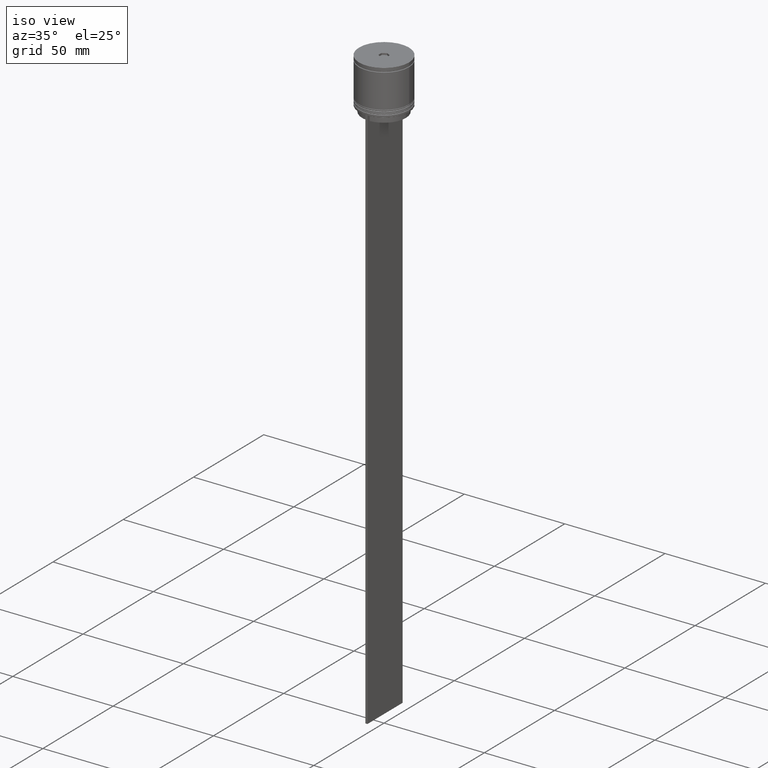
[diagram: clean part render]
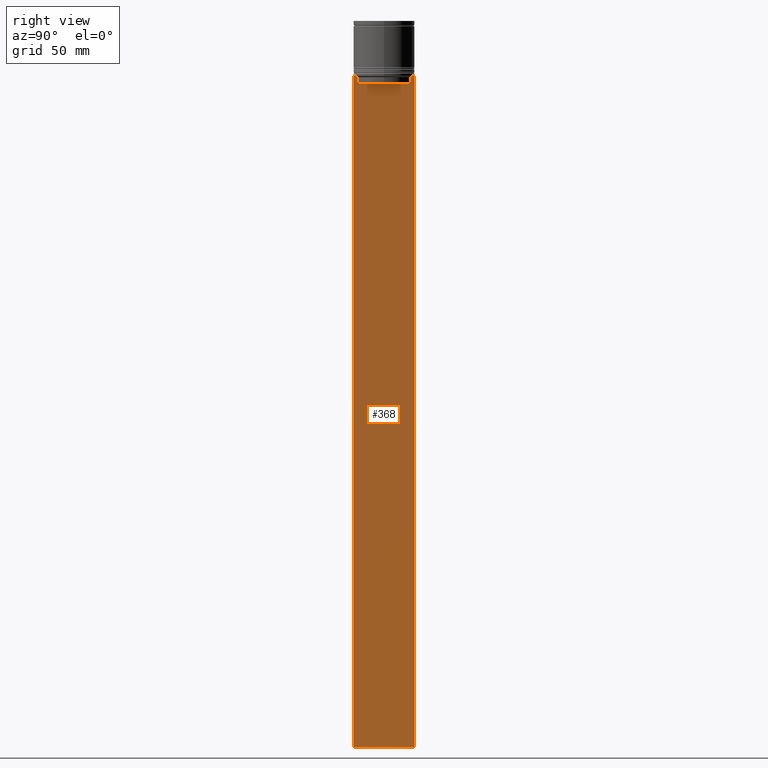
[diagram: tour spotlight — one face highlighted and labeled with its STEP entity id]
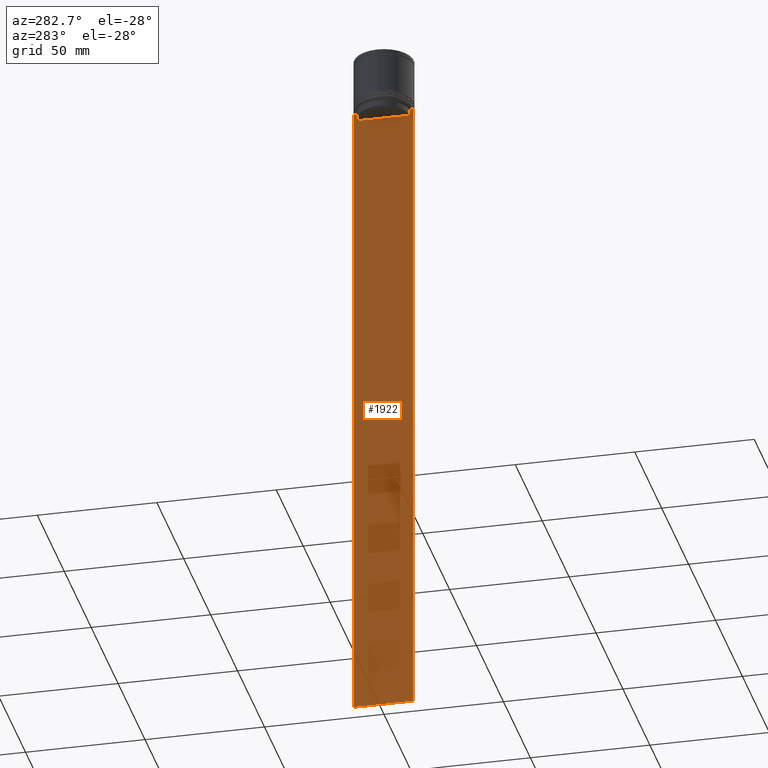
[diagram: tour spotlight — one face highlighted and labeled with its STEP entity id]
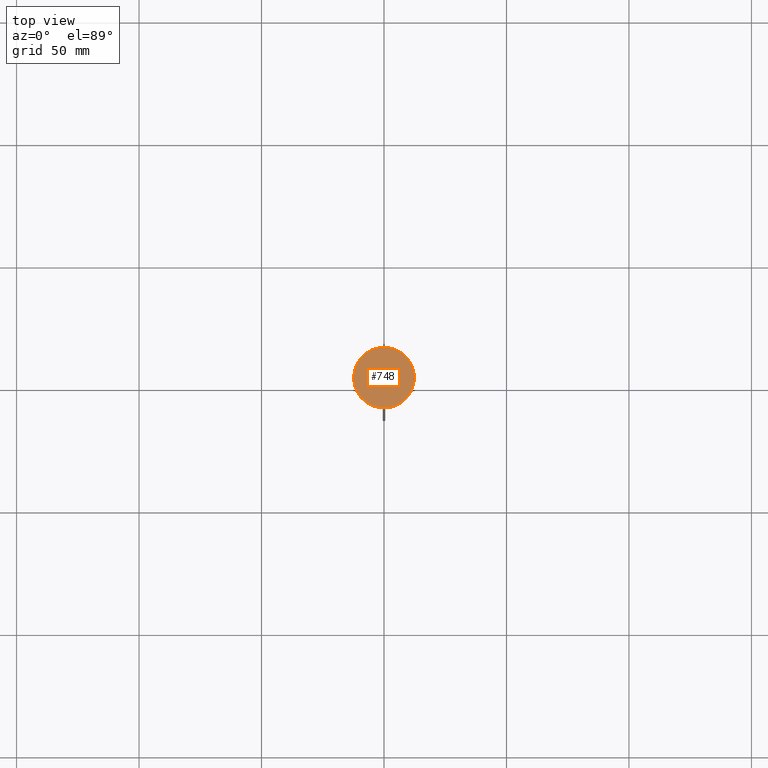
[diagram: tour spotlight — one face highlighted and labeled with its STEP entity id]
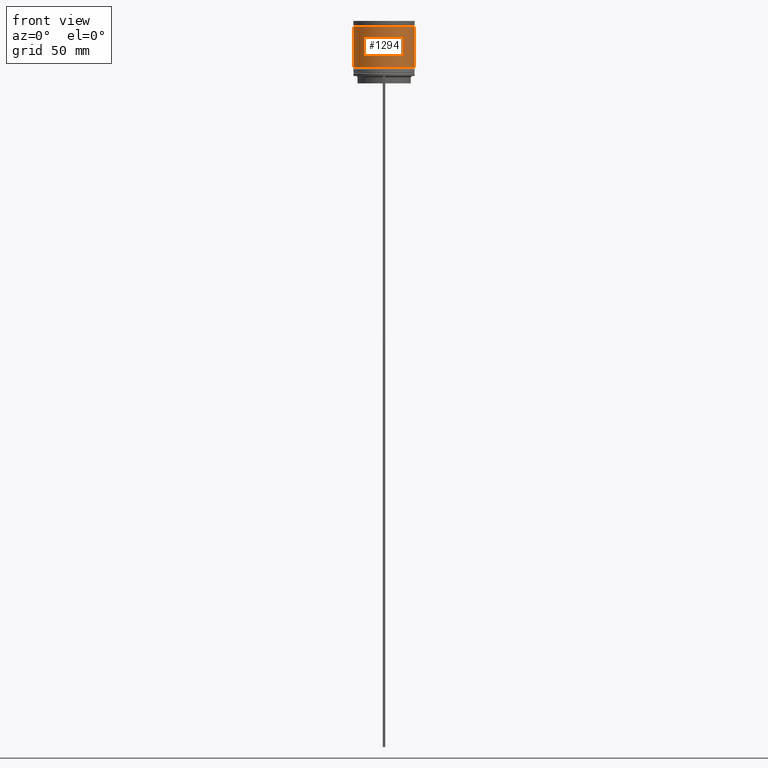
[diagram: tour spotlight — one face highlighted and labeled with its STEP entity id]
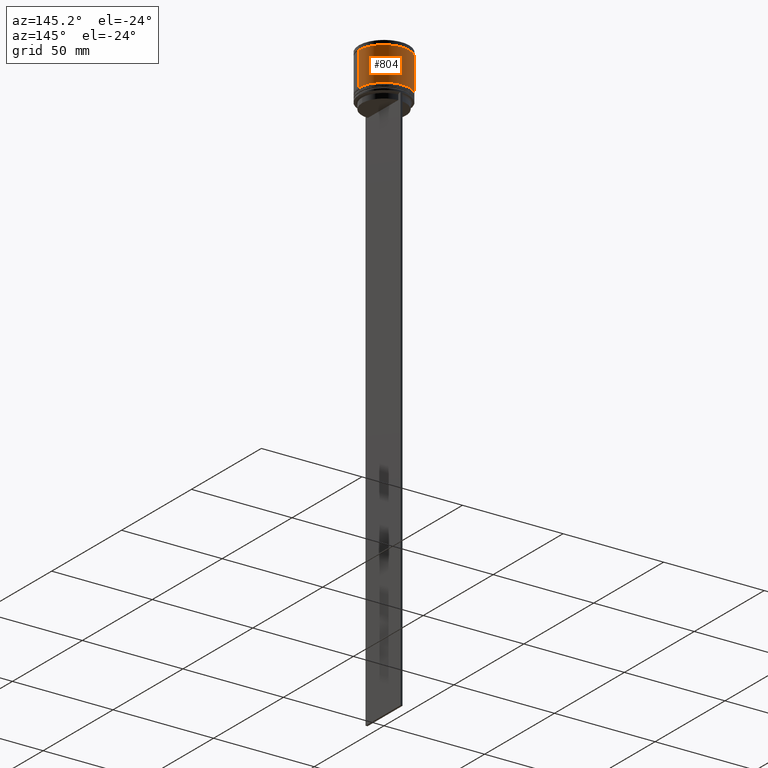
[diagram: tour spotlight — one face highlighted and labeled with its STEP entity id]
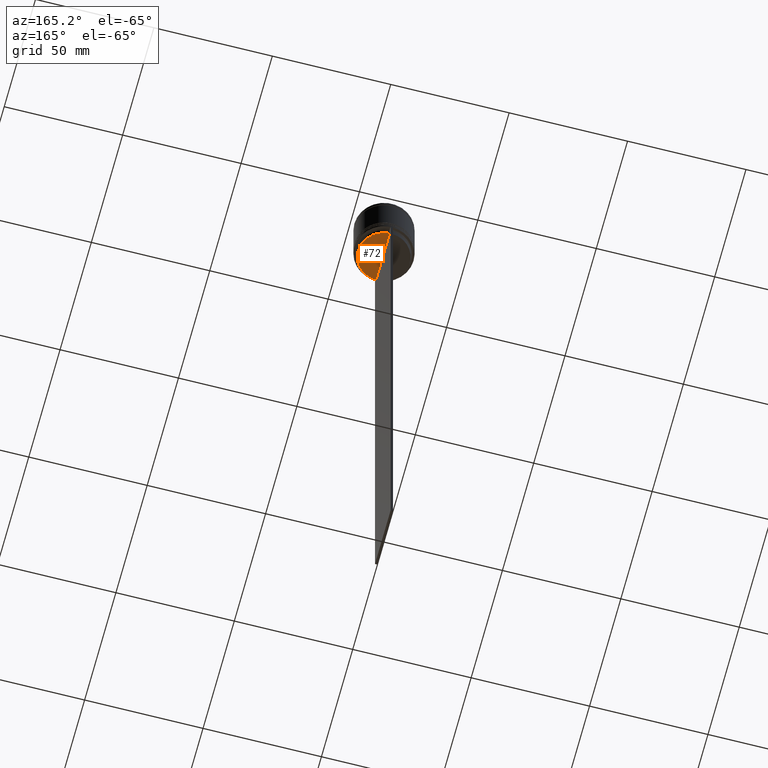
[diagram: tour spotlight — one face highlighted and labeled with its STEP entity id]
A machine part: a face-by-face anatomy tour. The part has 75 B-rep faces; the first image is the clean iso view, then the 6 largest visible faces are spotlighted one at a time (largest first), each with its STEP entity span.

Face 1 — right view, entity #368. In plain terms, the highlighted planar face has unit normal (-1, 0, 0).
Definition (entity closure, byte-faithful):
#27 = CARTESIAN_POINT ( 'NONE',  ( 0.5000000000000000000, 10.88852607105297032, -22.99999999999999645 ) ) ;
#47 = PLANE ( 'NONE',  #1369 ) ;
#53 = CARTESIAN_POINT ( 'NONE',  ( 0.5000000000000000000, 10.90000000000000924, -25.50000000000000000 ) ) ;
#93 = VECTOR ( 'NONE', #1723, 1000.000000000000000 ) ;
#98 = CARTESIAN_POINT ( 'NONE',  ( 0.5000000000000000000, -11.38902980942626897, -22.50000000000000000 ) ) ;
#114 = CARTESIAN_POINT ( 'NONE',  ( 0.5000000000000000000, -12.49999999999999289, -296.5000000000000568 ) ) ;
#128 = VECTOR ( 'NONE', #902, 1000.000000000000000 ) ;
#168 = VECTOR ( 'NONE', #191, 1000.000000000000000 ) ;
#180 = CARTESIAN_POINT ( 'NONE',  ( 0.5000000000000000000, -12.49999999999999289, 2.519992006393609874 ) ) ;
#191 = DIRECTION ( 'NONE',  ( 0.000000000000000000, -1.000000000000000000, 0.000000000000000000 ) ) ;
#222 = VERTEX_POINT ( 'NONE', #781 ) ;
#226 = EDGE_CURVE ( 'NONE', #1584, #1885, #301, .T. ) ;
#252 = ORIENTED_EDGE ( 'NONE', *, *, #1444, .T. ) ;
#264 = ORIENTED_EDGE ( 'NONE', *, *, #1318, .T. ) ;
#268 = CARTESIAN_POINT ( 'NONE',  ( 0.5000000000000000000, -10.88852607105297032, 0.000000000000000000 ) ) ;
#301 = LINE ( 'NONE', #1898, #93 ) ;
#316 = VECTOR ( 'NONE', #1441, 1000.000000000000000 ) ;
#321 = ORIENTED_EDGE ( 'NONE', *, *, #1782, .T. ) ;
#355 = ORIENTED_EDGE ( 'NONE', *, *, #1642, .T. ) ;
#365 = EDGE_CURVE ( 'NONE', #1190, #1086, #883, .T. ) ;
#368 = ADVANCED_FACE ( 'NONE', ( #505 ), #47, .F. ) ;
#385 = DIRECTION ( 'NONE',  ( 0.000000000000000000, -1.000000000000000000, 0.000000000000000000 ) ) ;
#423 = EDGE_CURVE ( 'NONE', #1380, #222, #1014, .T. ) ;
#495 = CARTESIAN_POINT ( 'NONE',  ( 0.5000000000000000000, 11.05536450345590715, -22.83333719074559554 ) ) ;
#505 = FACE_OUTER_BOUND ( 'NONE', #1358, .T. ) ;
#564 = EDGE_CURVE ( 'NONE', #222, #1223, #1290, .T. ) ;
#577 = VERTEX_POINT ( 'NONE', #1204 ) ;
#595 = VECTOR ( 'NONE', #720, 1000.000000000000000 ) ;
#623 = ORIENTED_EDGE ( 'NONE', *, *, #423, .T. ) ;
#636 = CARTESIAN_POINT ( 'NONE',  ( 0.5000000000000000000, -10.88852607105297032, -22.99999999999999645 ) ) ;
#662 = CARTESIAN_POINT ( 'NONE',  ( 0.5000000000000000000, -12.49999999999999289, -296.5000000000000568 ) ) ;
#701 = VECTOR ( 'NONE', #1053, 1000.000000000000000 ) ;
#715 = CARTESIAN_POINT ( 'NONE',  ( 0.5000000000000000000, -12.49999999999999289, -22.50000000000000000 ) ) ;
#720 = DIRECTION ( 'NONE',  ( 0.000000000000000000, 0.000000000000000000, -1.000000000000000000 ) ) ;
#773 = DIRECTION ( 'NONE',  ( 0.000000000000000000, -1.000000000000000000, 0.000000000000000000 ) ) ;
#781 = CARTESIAN_POINT ( 'NONE',  ( 0.5000000000000000000, -10.88852607105296855, -25.50000000000000000 ) ) ;
#784 = CARTESIAN_POINT ( 'NONE',  ( 0.5000000000000000000, -12.49999999999999289, -22.50000000000000000 ) ) ;
#793 = CARTESIAN_POINT ( 'NONE',  ( 0.5000000000000000000, -12.49999999999999289, -22.50000000000000000 ) ) ;
#828 = CARTESIAN_POINT ( 'NONE',  ( 0.5000000000000000000, 11.38902980942626897, -22.50000000000000000 ) ) ;
#874 = VECTOR ( 'NONE', #385, 1000.000000000000000 ) ;
#883 = B_SPLINE_CURVE_WITH_KNOTS ( 'NONE', 3,
 ( #828, #1979, #495, #27 ),
 .UNSPECIFIED., .F., .F.,
 ( 4, 4 ),
 ( 0.01935560801904635808, 0.02006307108468587813 ),
 .UNSPECIFIED. ) ;
#887 = VERTEX_POINT ( 'NONE', #784 ) ;
#889 = CARTESIAN_POINT ( 'NONE',  ( 0.5000000000000000000, 11.38902980942626897, -22.50000000000000000 ) ) ;
#902 = DIRECTION ( 'NONE',  ( -0.000000000000000000, -0.000000000000000000, 1.000000000000000000 ) ) ;
#909 = CARTESIAN_POINT ( 'NONE',  ( 0.5000000000000000000, -11.38902980942626897, -22.50000000000000000 ) ) ;
#932 = CARTESIAN_POINT ( 'NONE',  ( 0.5000000000000000000, -12.49999999999999289, -22.50000000000000000 ) ) ;
#973 = LINE ( 'NONE', #715, #874 ) ;
#988 = EDGE_CURVE ( 'NONE', #1837, #1885, #1467, .T. ) ;
#1014 = LINE ( 'NONE', #53, #168 ) ;
#1022 = LINE ( 'NONE', #1666, #1619 ) ;
#1046 = CARTESIAN_POINT ( 'NONE',  ( 0.5000000000000000000, -12.38991525394746596, -22.50000000000000000 ) ) ;
#1053 = DIRECTION ( 'NONE',  ( 0.000000000000000000, 1.000000000000000000, 0.000000000000000000 ) ) ;
#1077 = ORIENTED_EDGE ( 'NONE', *, *, #1220, .T. ) ;
#1080 = ORIENTED_EDGE ( 'NONE', *, *, #226, .F. ) ;
#1086 = VERTEX_POINT ( 'NONE', #1883 ) ;
#1116 = CARTESIAN_POINT ( 'NONE',  ( 0.5000000000000000000, -11.05536450423839412, -22.83333718996392747 ) ) ;
#1150 = ORIENTED_EDGE ( 'NONE', *, *, #365, .T. ) ;
#1172 = B_SPLINE_CURVE_WITH_KNOTS ( 'NONE', 3,
 ( #636, #1116, #1768, #909 ),
 .UNSPECIFIED., .F., .F.,
 ( 4, 4 ),
 ( 0.05041323384703231408, 0.05112713601261610619 ),
 .UNSPECIFIED. ) ;
#1190 = VERTEX_POINT ( 'NONE', #889 ) ;
#1195 = CARTESIAN_POINT ( 'NONE',  ( 0.5000000000000000000, -12.49999999999999289, 2.519992006393609874 ) ) ;
#1204 = CARTESIAN_POINT ( 'NONE',  ( 0.5000000000000000000, 12.38991525394746596, -22.50000000000000000 ) ) ;
#1220 = EDGE_CURVE ( 'NONE', #1584, #577, #1307, .T. ) ;
#1223 = VERTEX_POINT ( 'NONE', #1427 ) ;
#1226 = ORIENTED_EDGE ( 'NONE', *, *, #988, .T. ) ;
#1290 = LINE ( 'NONE', #268, #128 ) ;
#1307 = LINE ( 'NONE', #932, #1617 ) ;
#1318 = EDGE_CURVE ( 'NONE', #1917, #1966, #1661, .T. ) ;
#1355 = CARTESIAN_POINT ( 'NONE',  ( 0.5000000000000000000, 12.50000000000000711, -22.50000000000000000 ) ) ;
#1358 = EDGE_LOOP ( 'NONE', ( #1520, #1150, #355, #623, #1497, #252, #264, #321, #1539, #1226, #1080, #1077 ) ) ;
#1364 = CARTESIAN_POINT ( 'NONE',  ( 0.5000000000000000000, 10.88852607105296855, -25.50000000000000000 ) ) ;
#1369 = AXIS2_PLACEMENT_3D ( 'NONE', #180, #1729, #1597 ) ;
#1374 = EDGE_CURVE ( 'NONE', #887, #1837, #2003, .T. ) ;
#1380 = VERTEX_POINT ( 'NONE', #1364 ) ;
#1427 = CARTESIAN_POINT ( 'NONE',  ( 0.5000000000000000000, -10.88852607105297032, -22.99999999999999645 ) ) ;
#1441 = DIRECTION ( 'NONE',  ( 0.000000000000000000, -1.000000000000000000, 0.000000000000000000 ) ) ;
#1444 = EDGE_CURVE ( 'NONE', #1223, #1917, #1172, .T. ) ;
#1467 = LINE ( 'NONE', #662, #701 ) ;
#1497 = ORIENTED_EDGE ( 'NONE', *, *, #564, .T. ) ;
#1520 = ORIENTED_EDGE ( 'NONE', *, *, #1884, .T. ) ;
#1539 = ORIENTED_EDGE ( 'NONE', *, *, #1374, .T. ) ;
#1584 = VERTEX_POINT ( 'NONE', #1355 ) ;
#1597 = DIRECTION ( 'NONE',  ( 0.000000000000000000, 0.000000000000000000, 1.000000000000000000 ) ) ;
#1604 = LINE ( 'NONE', #793, #316 ) ;
#1617 = VECTOR ( 'NONE', #1747, 1000.000000000000000 ) ;
#1619 = VECTOR ( 'NONE', #1834, 1000.000000000000000 ) ;
#1642 = EDGE_CURVE ( 'NONE', #1086, #1380, #1022, .T. ) ;
#1661 = LINE ( 'NONE', #1870, #1878 ) ;
#1666 = CARTESIAN_POINT ( 'NONE',  ( 0.5000000000000000000, 10.88852607105297032, 0.000000000000000000 ) ) ;
#1723 = DIRECTION ( 'NONE',  ( 0.000000000000000000, 0.000000000000000000, -1.000000000000000000 ) ) ;
#1729 = DIRECTION ( 'NONE',  ( -1.000000000000000000, 0.000000000000000000, 0.000000000000000000 ) ) ;
#1747 = DIRECTION ( 'NONE',  ( 0.000000000000000000, -1.000000000000000000, 0.000000000000000000 ) ) ;
#1768 = CARTESIAN_POINT ( 'NONE',  ( 0.5000000000000000000, -11.22219891450653151, -22.66667035398018726 ) ) ;
#1782 = EDGE_CURVE ( 'NONE', #1966, #887, #1604, .T. ) ;
#1834 = DIRECTION ( 'NONE',  ( 0.000000000000000000, 0.000000000000000000, -1.000000000000000000 ) ) ;
#1837 = VERTEX_POINT ( 'NONE', #114 ) ;
#1870 = CARTESIAN_POINT ( 'NONE',  ( 0.5000000000000000000, -12.49999999999999289, -22.50000000000000000 ) ) ;
#1878 = VECTOR ( 'NONE', #773, 1000.000000000000000 ) ;
#1883 = CARTESIAN_POINT ( 'NONE',  ( 0.5000000000000000000, 10.88852607105297032, -22.99999999999999645 ) ) ;
#1884 = EDGE_CURVE ( 'NONE', #577, #1190, #973, .T. ) ;
#1885 = VERTEX_POINT ( 'NONE', #1899 ) ;
#1898 = CARTESIAN_POINT ( 'NONE',  ( 0.5000000000000000000, 12.50000000000000711, 2.519992006393609874 ) ) ;
#1899 = CARTESIAN_POINT ( 'NONE',  ( 0.5000000000000000000, 12.50000000000000711, -296.5000000000000568 ) ) ;
#1917 = VERTEX_POINT ( 'NONE', #98 ) ;
#1966 = VERTEX_POINT ( 'NONE', #1046 ) ;
#1979 = CARTESIAN_POINT ( 'NONE',  ( 0.5000000000000000000, 11.22219891375843126, -22.66667035472756808 ) ) ;
#2003 = LINE ( 'NONE', #1195, #595 ) ;

Face 2 — auxiliary view, entity #1922. In plain terms, the highlighted planar face has unit normal (-1, 0, 0).
Definition (entity closure, byte-faithful):
#60 = VERTEX_POINT ( 'NONE', #2080 ) ;
#86 = CARTESIAN_POINT ( 'NONE',  ( -0.5000000000000000000, 10.88852607105297032, -22.99999999999999645 ) ) ;
#201 = EDGE_CURVE ( 'NONE', #60, #2062, #440, .T. ) ;
#223 = ORIENTED_EDGE ( 'NONE', *, *, #1628, .F. ) ;
#224 = ORIENTED_EDGE ( 'NONE', *, *, #1472, .F. ) ;
#254 = LINE ( 'NONE', #267, #1342 ) ;
#267 = CARTESIAN_POINT ( 'NONE',  ( -0.5000000000000000000, -12.49999999999999289, -22.50000000000000000 ) ) ;
#277 = VECTOR ( 'NONE', #456, 1000.000000000000000 ) ;
#314 = ORIENTED_EDGE ( 'NONE', *, *, #201, .F. ) ;
#343 = CARTESIAN_POINT ( 'NONE',  ( -0.5000000000000000000, -11.38902980942626897, -22.50000000000000000 ) ) ;
#351 = CARTESIAN_POINT ( 'NONE',  ( -0.5000000000000000000, 11.38902980942626897, -22.50000000000000000 ) ) ;
#392 = CARTESIAN_POINT ( 'NONE',  ( -0.5000000000000000000, 12.50000000000000711, -296.5000000000000568 ) ) ;
#411 = LINE ( 'NONE', #1693, #1613 ) ;
#415 = VERTEX_POINT ( 'NONE', #705 ) ;
#426 = CARTESIAN_POINT ( 'NONE',  ( -0.5000000000000000000, 11.38902980942626897, -22.50000000000000000 ) ) ;
#436 = VECTOR ( 'NONE', #1659, 1000.000000000000000 ) ;
#440 = LINE ( 'NONE', #1083, #1438 ) ;
#456 = DIRECTION ( 'NONE',  ( 0.000000000000000000, -1.000000000000000000, 0.000000000000000000 ) ) ;
#461 = CARTESIAN_POINT ( 'NONE',  ( -0.5000000000000000000, -11.05536450423839412, -22.83333718996392747 ) ) ;
#491 = ORIENTED_EDGE ( 'NONE', *, *, #494, .T. ) ;
#494 = EDGE_CURVE ( 'NONE', #855, #621, #1326, .T. ) ;
#504 = DIRECTION ( 'NONE',  ( 0.000000000000000000, -1.000000000000000000, 0.000000000000000000 ) ) ;
#541 = CARTESIAN_POINT ( 'NONE',  ( -0.5000000000000000000, 12.50000000000000711, 2.519992006393609874 ) ) ;
#544 = EDGE_CURVE ( 'NONE', #2062, #621, #411, .T. ) ;
#546 = VERTEX_POINT ( 'NONE', #750 ) ;
#549 = LINE ( 'NONE', #1832, #1487 ) ;
#572 = FACE_OUTER_BOUND ( 'NONE', #1384, .T. ) ;
#573 = CARTESIAN_POINT ( 'NONE',  ( -0.5000000000000000000, 12.38991525394746596, -22.50000000000000000 ) ) ;
#578 = PLANE ( 'NONE',  #1550 ) ;
#612 = EDGE_CURVE ( 'NONE', #1361, #546, #751, .T. ) ;
#619 = CARTESIAN_POINT ( 'NONE',  ( -0.5000000000000000000, -11.38902980942626897, -22.50000000000000000 ) ) ;
#621 = VERTEX_POINT ( 'NONE', #392 ) ;
#692 = ORIENTED_EDGE ( 'NONE', *, *, #1668, .F. ) ;
#705 = CARTESIAN_POINT ( 'NONE',  ( -0.5000000000000000000, 10.88852607105296855, -25.50000000000000000 ) ) ;
#734 = EDGE_CURVE ( 'NONE', #1810, #865, #831, .T. ) ;
#739 = CARTESIAN_POINT ( 'NONE',  ( -0.5000000000000000000, 11.05536450345590715, -22.83333719074559554 ) ) ;
#750 = CARTESIAN_POINT ( 'NONE',  ( -0.5000000000000000000, 10.88852607105297032, -22.99999999999999645 ) ) ;
#751 = B_SPLINE_CURVE_WITH_KNOTS ( 'NONE', 3,
 ( #426, #1062, #739, #86 ),
 .UNSPECIFIED., .F., .F.,
 ( 4, 4 ),
 ( 0.01935560801904635808, 0.02006307108468587813 ),
 .UNSPECIFIED. ) ;
#800 = CARTESIAN_POINT ( 'NONE',  ( -0.5000000000000000000, -12.49999999999999289, -296.5000000000000568 ) ) ;
#817 = CARTESIAN_POINT ( 'NONE',  ( -0.5000000000000000000, -12.49999999999999289, 2.519992006393609874 ) ) ;
#824 = DIRECTION ( 'NONE',  ( 0.000000000000000000, -1.000000000000000000, 0.000000000000000000 ) ) ;
#831 = B_SPLINE_CURVE_WITH_KNOTS ( 'NONE', 3,
 ( #1764, #461, #1603, #619 ),
 .UNSPECIFIED., .F., .F.,
 ( 4, 4 ),
 ( 0.05041323384703231408, 0.05112713601261610619 ),
 .UNSPECIFIED. ) ;
#847 = CARTESIAN_POINT ( 'NONE',  ( -0.5000000000000000000, -10.88852607105297032, 0.000000000000000000 ) ) ;
#855 = VERTEX_POINT ( 'NONE', #1442 ) ;
#862 = LINE ( 'NONE', #1015, #436 ) ;
#865 = VERTEX_POINT ( 'NONE', #343 ) ;
#867 = VECTOR ( 'NONE', #1000, 1000.000000000000000 ) ;
#871 = DIRECTION ( 'NONE',  ( 0.000000000000000000, -1.000000000000000000, 0.000000000000000000 ) ) ;
#892 = DIRECTION ( 'NONE',  ( 0.000000000000000000, 1.000000000000000000, 0.000000000000000000 ) ) ;
#934 = VERTEX_POINT ( 'NONE', #573 ) ;
#1000 = DIRECTION ( 'NONE',  ( -0.000000000000000000, -0.000000000000000000, 1.000000000000000000 ) ) ;
#1015 = CARTESIAN_POINT ( 'NONE',  ( -0.5000000000000000000, 10.88852607105297032, 0.000000000000000000 ) ) ;
#1062 = CARTESIAN_POINT ( 'NONE',  ( -0.5000000000000000000, 11.22219891375843126, -22.66667035472756808 ) ) ;
#1083 = CARTESIAN_POINT ( 'NONE',  ( -0.5000000000000000000, -12.49999999999999289, 2.519992006393609874 ) ) ;
#1104 = ORIENTED_EDGE ( 'NONE', *, *, #1820, .F. ) ;
#1111 = CARTESIAN_POINT ( 'NONE',  ( -0.5000000000000000000, -12.49999999999999289, -22.50000000000000000 ) ) ;
#1123 = ORIENTED_EDGE ( 'NONE', *, *, #544, .F. ) ;
#1186 = EDGE_CURVE ( 'NONE', #855, #934, #254, .T. ) ;
#1262 = CARTESIAN_POINT ( 'NONE',  ( -0.5000000000000000000, -10.88852607105297032, -22.99999999999999645 ) ) ;
#1268 = ORIENTED_EDGE ( 'NONE', *, *, #612, .F. ) ;
#1292 = LINE ( 'NONE', #847, #867 ) ;
#1302 = EDGE_CURVE ( 'NONE', #865, #1461, #1965, .T. ) ;
#1303 = DIRECTION ( 'NONE',  ( 0.000000000000000000, 0.000000000000000000, 1.000000000000000000 ) ) ;
#1326 = LINE ( 'NONE', #541, #1951 ) ;
#1331 = ORIENTED_EDGE ( 'NONE', *, *, #1302, .F. ) ;
#1342 = VECTOR ( 'NONE', #2052, 1000.000000000000000 ) ;
#1361 = VERTEX_POINT ( 'NONE', #351 ) ;
#1384 = EDGE_LOOP ( 'NONE', ( #1268, #1104, #1524, #491, #1123, #314, #1840, #1331, #1577, #224, #692, #223 ) ) ;
#1409 = LINE ( 'NONE', #1111, #277 ) ;
#1437 = DIRECTION ( 'NONE',  ( 0.000000000000000000, 0.000000000000000000, -1.000000000000000000 ) ) ;
#1438 = VECTOR ( 'NONE', #1437, 1000.000000000000000 ) ;
#1442 = CARTESIAN_POINT ( 'NONE',  ( -0.5000000000000000000, 12.50000000000000711, -22.50000000000000000 ) ) ;
#1461 = VERTEX_POINT ( 'NONE', #1485 ) ;
#1463 = EDGE_CURVE ( 'NONE', #1461, #60, #1808, .T. ) ;
#1466 = DIRECTION ( 'NONE',  ( -1.000000000000000000, 0.000000000000000000, 0.000000000000000000 ) ) ;
#1472 = EDGE_CURVE ( 'NONE', #1912, #1810, #1292, .T. ) ;
#1485 = CARTESIAN_POINT ( 'NONE',  ( -0.5000000000000000000, -12.38991525394746596, -22.50000000000000000 ) ) ;
#1487 = VECTOR ( 'NONE', #871, 1000.000000000000000 ) ;
#1524 = ORIENTED_EDGE ( 'NONE', *, *, #1186, .F. ) ;
#1541 = CARTESIAN_POINT ( 'NONE',  ( -0.5000000000000000000, -10.88852607105296855, -25.50000000000000000 ) ) ;
#1550 = AXIS2_PLACEMENT_3D ( 'NONE', #817, #1466, #1303 ) ;
#1577 = ORIENTED_EDGE ( 'NONE', *, *, #734, .F. ) ;
#1603 = CARTESIAN_POINT ( 'NONE',  ( -0.5000000000000000000, -11.22219891450653151, -22.66667035398018726 ) ) ;
#1613 = VECTOR ( 'NONE', #892, 1000.000000000000000 ) ;
#1628 = EDGE_CURVE ( 'NONE', #546, #415, #862, .T. ) ;
#1633 = CARTESIAN_POINT ( 'NONE',  ( -0.5000000000000000000, -12.49999999999999289, -22.50000000000000000 ) ) ;
#1659 = DIRECTION ( 'NONE',  ( 0.000000000000000000, 0.000000000000000000, -1.000000000000000000 ) ) ;
#1668 = EDGE_CURVE ( 'NONE', #415, #1912, #549, .T. ) ;
#1693 = CARTESIAN_POINT ( 'NONE',  ( -0.5000000000000000000, -12.49999999999999289, -296.5000000000000568 ) ) ;
#1764 = CARTESIAN_POINT ( 'NONE',  ( -0.5000000000000000000, -10.88852607105297032, -22.99999999999999645 ) ) ;
#1787 = VECTOR ( 'NONE', #824, 1000.000000000000000 ) ;
#1808 = LINE ( 'NONE', #1633, #1787 ) ;
#1810 = VERTEX_POINT ( 'NONE', #1262 ) ;
#1820 = EDGE_CURVE ( 'NONE', #934, #1361, #1409, .T. ) ;
#1832 = CARTESIAN_POINT ( 'NONE',  ( -0.5000000000000000000, 10.90000000000000924, -25.50000000000000000 ) ) ;
#1840 = ORIENTED_EDGE ( 'NONE', *, *, #1463, .F. ) ;
#1912 = VERTEX_POINT ( 'NONE', #1541 ) ;
#1922 = ADVANCED_FACE ( 'NONE', ( #572 ), #578, .T. ) ;
#1947 = CARTESIAN_POINT ( 'NONE',  ( -0.5000000000000000000, -12.49999999999999289, -22.50000000000000000 ) ) ;
#1951 = VECTOR ( 'NONE', #1994, 1000.000000000000000 ) ;
#1965 = LINE ( 'NONE', #1947, #1986 ) ;
#1986 = VECTOR ( 'NONE', #504, 1000.000000000000000 ) ;
#1994 = DIRECTION ( 'NONE',  ( 0.000000000000000000, 0.000000000000000000, -1.000000000000000000 ) ) ;
#2052 = DIRECTION ( 'NONE',  ( 0.000000000000000000, -1.000000000000000000, 0.000000000000000000 ) ) ;
#2062 = VERTEX_POINT ( 'NONE', #800 ) ;
#2080 = CARTESIAN_POINT ( 'NONE',  ( -0.5000000000000000000, -12.49999999999999289, -22.50000000000000000 ) ) ;

Face 3 — top view, entity #748. In plain terms, the highlighted planar face has unit normal (0, -0, 1).
Definition (entity closure, byte-faithful):
#23 = LINE ( 'NONE', #1457, #211 ) ;
#113 = EDGE_CURVE ( 'NONE', #1987, #998, #1595, .T. ) ;
#125 = DIRECTION ( 'NONE',  ( 1.000000000000000000, 0.000000000000000000, 0.000000000000000000 ) ) ;
#131 = AXIS2_PLACEMENT_3D ( 'NONE', #2040, #749, #1240 ) ;
#161 = FACE_OUTER_BOUND ( 'NONE', #1759, .T. ) ;
#164 = CARTESIAN_POINT ( 'NONE',  ( -2.099999999999983213, 1.154700538379251018, 0.000000000000000000 ) ) ;
#196 = LINE ( 'NONE', #829, #637 ) ;
#211 = VECTOR ( 'NONE', #485, 1000.000000000000000 ) ;
#271 = VECTOR ( 'NONE', #512, 1000.000000000000000 ) ;
#336 = ORIENTED_EDGE ( 'NONE', *, *, #1100, .T. ) ;
#367 = CARTESIAN_POINT ( 'NONE',  ( 4.687517206659946955E-16, -2.424871130596408797, 0.000000000000000000 ) ) ;
#453 = ORIENTED_EDGE ( 'NONE', *, *, #1858, .T. ) ;
#485 = DIRECTION ( 'NONE',  ( 0.000000000000000000, -1.000000000000000000, 0.000000000000000000 ) ) ;
#489 = FACE_BOUND ( 'NONE', #1861, .T. ) ;
#512 = DIRECTION ( 'NONE',  ( 0.000000000000000000, 1.000000000000000000, 0.000000000000000000 ) ) ;
#526 = VERTEX_POINT ( 'NONE', #1068 ) ;
#528 = DIRECTION ( 'NONE',  ( -0.8660254037844385966, -0.5000000000000002220, 0.000000000000000000 ) ) ;
#540 = CIRCLE ( 'NONE', #1713, 12.39999999999999858 ) ;
#543 = ORIENTED_EDGE ( 'NONE', *, *, #1760, .T. ) ;
#581 = CARTESIAN_POINT ( 'NONE',  ( 2.049999999999991385, 1.241303078757680645, 0.000000000000000000 ) ) ;
#602 = CARTESIAN_POINT ( 'NONE',  ( 2.099999999999983213, 1.212435565298204176, 0.000000000000000000 ) ) ;
#607 = CARTESIAN_POINT ( 'NONE',  ( 0.000000000000000000, 0.000000000000000000, 0.000000000000000000 ) ) ;
#637 = VECTOR ( 'NONE', #1784, 1000.000000000000114 ) ;
#661 = ORIENTED_EDGE ( 'NONE', *, *, #1074, .T. ) ;
#748 = ADVANCED_FACE ( 'NONE', ( #161, #489 ), #759, .T. ) ;
#749 = DIRECTION ( 'NONE',  ( -0.000000000000000000, -0.000000000000000000, 1.000000000000000000 ) ) ;
#759 = PLANE ( 'NONE',  #979 ) ;
#792 = DIRECTION ( 'NONE',  ( 0.000000000000000000, -0.000000000000000000, 1.000000000000000000 ) ) ;
#794 = ORIENTED_EDGE ( 'NONE', *, *, #859, .T. ) ;
#829 = CARTESIAN_POINT ( 'NONE',  ( -2.049999999999991385, -1.241303078757681533, 0.000000000000000000 ) ) ;
#846 = CARTESIAN_POINT ( 'NONE',  ( 0.04999999999999210631, -2.396003617136932551, 0.000000000000000000 ) ) ;
#859 = EDGE_CURVE ( 'NONE', #1469, #1987, #196, .T. ) ;
#920 = VERTEX_POINT ( 'NONE', #602 ) ;
#979 = AXIS2_PLACEMENT_3D ( 'NONE', #607, #792, #125 ) ;
#998 = VERTEX_POINT ( 'NONE', #1397 ) ;
#1068 = CARTESIAN_POINT ( 'NONE',  ( -12.39999999999999858, 1.524685264938454448E-15, 0.000000000000000000 ) ) ;
#1074 = EDGE_CURVE ( 'NONE', #526, #1785, #1954, .T. ) ;
#1075 = CARTESIAN_POINT ( 'NONE',  ( -2.019064530729228630E-16, 2.424871130596408353, 0.000000000000000000 ) ) ;
#1100 = EDGE_CURVE ( 'NONE', #998, #1886, #1586, .T. ) ;
#1224 = DIRECTION ( 'NONE',  ( 0.8660254037844387076, -0.4999999999999998890, 0.000000000000000000 ) ) ;
#1236 = VECTOR ( 'NONE', #1377, 1000.000000000000000 ) ;
#1240 = DIRECTION ( 'NONE',  ( 1.000000000000000000, 0.000000000000000000, 0.000000000000000000 ) ) ;
#1251 = CARTESIAN_POINT ( 'NONE',  ( 12.39999999999999858, 0.000000000000000000, 0.000000000000000000 ) ) ;
#1319 = DIRECTION ( 'NONE',  ( -0.000000000000000000, -0.000000000000000000, 1.000000000000000000 ) ) ;
#1363 = CARTESIAN_POINT ( 'NONE',  ( 2.099999999999983213, -1.212435565298204398, 0.000000000000000000 ) ) ;
#1377 = DIRECTION ( 'NONE',  ( 0.8660254037844387076, 0.4999999999999998890, 0.000000000000000000 ) ) ;
#1397 = CARTESIAN_POINT ( 'NONE',  ( -2.099999999999983213, 1.212435565298204176, 0.000000000000000000 ) ) ;
#1457 = CARTESIAN_POINT ( 'NONE',  ( 2.099999999999983213, -1.154700538379251684, 0.000000000000000000 ) ) ;
#1469 = VERTEX_POINT ( 'NONE', #367 ) ;
#1568 = CARTESIAN_POINT ( 'NONE',  ( -0.04999999999999179406, 2.396003617136931663, 0.000000000000000000 ) ) ;
#1586 = LINE ( 'NONE', #1568, #1236 ) ;
#1595 = LINE ( 'NONE', #164, #271 ) ;
#1606 = VERTEX_POINT ( 'NONE', #1363 ) ;
#1669 = ORIENTED_EDGE ( 'NONE', *, *, #1708, .T. ) ;
#1694 = LINE ( 'NONE', #846, #1849 ) ;
#1708 = EDGE_CURVE ( 'NONE', #920, #1606, #23, .T. ) ;
#1713 = AXIS2_PLACEMENT_3D ( 'NONE', #1932, #1319, #1969 ) ;
#1759 = EDGE_LOOP ( 'NONE', ( #453, #661 ) ) ;
#1760 = EDGE_CURVE ( 'NONE', #1606, #1469, #1694, .T. ) ;
#1784 = DIRECTION ( 'NONE',  ( -0.8660254037844388186, 0.4999999999999997780, 0.000000000000000000 ) ) ;
#1785 = VERTEX_POINT ( 'NONE', #1251 ) ;
#1819 = VECTOR ( 'NONE', #1224, 1000.000000000000000 ) ;
#1829 = EDGE_CURVE ( 'NONE', #1886, #920, #2028, .T. ) ;
#1844 = ORIENTED_EDGE ( 'NONE', *, *, #1829, .T. ) ;
#1849 = VECTOR ( 'NONE', #528, 999.9999999999998863 ) ;
#1858 = EDGE_CURVE ( 'NONE', #1785, #526, #540, .T. ) ;
#1861 = EDGE_LOOP ( 'NONE', ( #543, #794, #2069, #336, #1844, #1669 ) ) ;
#1886 = VERTEX_POINT ( 'NONE', #1075 ) ;
#1932 = CARTESIAN_POINT ( 'NONE',  ( 0.000000000000000000, 0.000000000000000000, 0.000000000000000000 ) ) ;
#1954 = CIRCLE ( 'NONE', #131, 12.39999999999999858 ) ;
#1969 = DIRECTION ( 'NONE',  ( 1.000000000000000000, 0.000000000000000000, 0.000000000000000000 ) ) ;
#1987 = VERTEX_POINT ( 'NONE', #2083 ) ;
#2028 = LINE ( 'NONE', #581, #1819 ) ;
#2040 = CARTESIAN_POINT ( 'NONE',  ( 0.000000000000000000, 0.000000000000000000, 0.000000000000000000 ) ) ;
#2069 = ORIENTED_EDGE ( 'NONE', *, *, #113, .T. ) ;
#2083 = CARTESIAN_POINT ( 'NONE',  ( -2.099999999999983213, -1.212435565298204843, 0.000000000000000000 ) ) ;

Face 4 — front view, entity #1294. In plain terms, the highlighted cylindrical surface (edge-blend (fillet) strip) has radius 12.5 mm, axis along (-0, -0, 1).
Definition (entity closure, byte-faithful):
#30 = CARTESIAN_POINT ( 'NONE',  ( -12.50000000000000355, 1.530808498934191916E-15, -19.00000000000000000 ) ) ;
#34 = ORIENTED_EDGE ( 'NONE', *, *, #1698, .T. ) ;
#61 = DIRECTION ( 'NONE',  ( -0.000000000000000000, -0.000000000000000000, 1.000000000000000000 ) ) ;
#105 = EDGE_CURVE ( 'NONE', #857, #1558, #1066, .T. ) ;
#247 = LINE ( 'NONE', #556, #1812 ) ;
#292 = ORIENTED_EDGE ( 'NONE', *, *, #525, .T. ) ;
#382 = ORIENTED_EDGE ( 'NONE', *, *, #1020, .F. ) ;
#458 = VERTEX_POINT ( 'NONE', #30 ) ;
#525 = EDGE_CURVE ( 'NONE', #1178, #1558, #247, .T. ) ;
#539 = AXIS2_PLACEMENT_3D ( 'NONE', #657, #1775, #965 ) ;
#556 = CARTESIAN_POINT ( 'NONE',  ( 12.50000000000000000, 0.000000000000000000, 0.000000000000000000 ) ) ;
#657 = CARTESIAN_POINT ( 'NONE',  ( 0.000000000000000000, 0.000000000000000000, -2.199999999999994404 ) ) ;
#683 = EDGE_LOOP ( 'NONE', ( #382, #34, #292, #1023 ) ) ;
#805 = AXIS2_PLACEMENT_3D ( 'NONE', #1004, #61, #1330 ) ;
#854 = CARTESIAN_POINT ( 'NONE',  ( 12.49999999999999645, 0.000000000000000000, -2.199999999999994404 ) ) ;
#857 = VERTEX_POINT ( 'NONE', #1941 ) ;
#965 = DIRECTION ( 'NONE',  ( 1.000000000000000000, 0.000000000000000000, 0.000000000000000000 ) ) ;
#1004 = CARTESIAN_POINT ( 'NONE',  ( 0.000000000000000000, 0.000000000000000000, 0.000000000000000000 ) ) ;
#1020 = EDGE_CURVE ( 'NONE', #458, #857, #1453, .T. ) ;
#1023 = ORIENTED_EDGE ( 'NONE', *, *, #105, .F. ) ;
#1066 = CIRCLE ( 'NONE', #539, 12.49999999999999645 ) ;
#1113 = CARTESIAN_POINT ( 'NONE',  ( -12.50000000000000000, 1.530808498934191521E-15, 0.000000000000000000 ) ) ;
#1178 = VERTEX_POINT ( 'NONE', #2025 ) ;
#1191 = DIRECTION ( 'NONE',  ( -0.000000000000000000, -0.000000000000000000, 1.000000000000000000 ) ) ;
#1246 = FACE_OUTER_BOUND ( 'NONE', #683, .T. ) ;
#1294 = ADVANCED_FACE ( 'NONE', ( #1246 ), #1888, .T. ) ;
#1330 = DIRECTION ( 'NONE',  ( 1.000000000000000000, 0.000000000000000000, 0.000000000000000000 ) ) ;
#1408 = AXIS2_PLACEMENT_3D ( 'NONE', #1640, #1962, #1648 ) ;
#1453 = LINE ( 'NONE', #1113, #1914 ) ;
#1519 = CIRCLE ( 'NONE', #1408, 12.50000000000000178 ) ;
#1558 = VERTEX_POINT ( 'NONE', #854 ) ;
#1596 = DIRECTION ( 'NONE',  ( -0.000000000000000000, -0.000000000000000000, 1.000000000000000000 ) ) ;
#1640 = CARTESIAN_POINT ( 'NONE',  ( 0.000000000000000000, 0.000000000000000000, -19.00000000000000000 ) ) ;
#1648 = DIRECTION ( 'NONE',  ( 1.000000000000000000, 0.000000000000000000, 0.000000000000000000 ) ) ;
#1698 = EDGE_CURVE ( 'NONE', #458, #1178, #1519, .T. ) ;
#1775 = DIRECTION ( 'NONE',  ( -0.000000000000000000, -0.000000000000000000, 1.000000000000000000 ) ) ;
#1812 = VECTOR ( 'NONE', #1191, 1000.000000000000000 ) ;
#1888 = CYLINDRICAL_SURFACE ( 'NONE', #805, 12.50000000000000000 ) ;
#1914 = VECTOR ( 'NONE', #1596, 1000.000000000000000 ) ;
#1941 = CARTESIAN_POINT ( 'NONE',  ( -12.49999999999999645, 1.530808498934191324E-15, -2.199999999999994404 ) ) ;
#1962 = DIRECTION ( 'NONE',  ( -0.000000000000000000, -0.000000000000000000, 1.000000000000000000 ) ) ;
#2025 = CARTESIAN_POINT ( 'NONE',  ( 12.50000000000000178, 0.000000000000000000, -19.00000000000000000 ) ) ;

Face 5 — auxiliary view, entity #804. In plain terms, the highlighted cylindrical surface (edge-blend (fillet) strip) has radius 12.5 mm, axis along (-0, -0, 1).
Definition (entity closure, byte-faithful):
#30 = CARTESIAN_POINT ( 'NONE',  ( -12.50000000000000355, 1.530808498934191916E-15, -19.00000000000000000 ) ) ;
#110 = EDGE_LOOP ( 'NONE', ( #329, #774, #2085, #1133 ) ) ;
#111 = DIRECTION ( 'NONE',  ( -0.000000000000000000, -0.000000000000000000, 1.000000000000000000 ) ) ;
#247 = LINE ( 'NONE', #556, #1812 ) ;
#273 = AXIS2_PLACEMENT_3D ( 'NONE', #723, #280, #1732 ) ;
#280 = DIRECTION ( 'NONE',  ( -0.000000000000000000, -0.000000000000000000, 1.000000000000000000 ) ) ;
#329 = ORIENTED_EDGE ( 'NONE', *, *, #1938, .T. ) ;
#433 = AXIS2_PLACEMENT_3D ( 'NONE', #1555, #111, #1748 ) ;
#458 = VERTEX_POINT ( 'NONE', #30 ) ;
#525 = EDGE_CURVE ( 'NONE', #1178, #1558, #247, .T. ) ;
#542 = AXIS2_PLACEMENT_3D ( 'NONE', #570, #927, #1697 ) ;
#556 = CARTESIAN_POINT ( 'NONE',  ( 12.50000000000000000, 0.000000000000000000, 0.000000000000000000 ) ) ;
#562 = CIRCLE ( 'NONE', #273, 12.49999999999999645 ) ;
#570 = CARTESIAN_POINT ( 'NONE',  ( 0.000000000000000000, 0.000000000000000000, -19.00000000000000000 ) ) ;
#706 = CIRCLE ( 'NONE', #542, 12.50000000000000178 ) ;
#723 = CARTESIAN_POINT ( 'NONE',  ( 0.000000000000000000, 0.000000000000000000, -2.199999999999994404 ) ) ;
#774 = ORIENTED_EDGE ( 'NONE', *, *, #1020, .T. ) ;
#804 = ADVANCED_FACE ( 'NONE', ( #912 ), #1581, .T. ) ;
#854 = CARTESIAN_POINT ( 'NONE',  ( 12.49999999999999645, 0.000000000000000000, -2.199999999999994404 ) ) ;
#857 = VERTEX_POINT ( 'NONE', #1941 ) ;
#912 = FACE_OUTER_BOUND ( 'NONE', #110, .T. ) ;
#915 = EDGE_CURVE ( 'NONE', #1558, #857, #562, .T. ) ;
#927 = DIRECTION ( 'NONE',  ( -0.000000000000000000, -0.000000000000000000, 1.000000000000000000 ) ) ;
#1020 = EDGE_CURVE ( 'NONE', #458, #857, #1453, .T. ) ;
#1113 = CARTESIAN_POINT ( 'NONE',  ( -12.50000000000000000, 1.530808498934191521E-15, 0.000000000000000000 ) ) ;
#1133 = ORIENTED_EDGE ( 'NONE', *, *, #525, .F. ) ;
#1178 = VERTEX_POINT ( 'NONE', #2025 ) ;
#1191 = DIRECTION ( 'NONE',  ( -0.000000000000000000, -0.000000000000000000, 1.000000000000000000 ) ) ;
#1453 = LINE ( 'NONE', #1113, #1914 ) ;
#1555 = CARTESIAN_POINT ( 'NONE',  ( 0.000000000000000000, 0.000000000000000000, 0.000000000000000000 ) ) ;
#1558 = VERTEX_POINT ( 'NONE', #854 ) ;
#1581 = CYLINDRICAL_SURFACE ( 'NONE', #433, 12.50000000000000000 ) ;
#1596 = DIRECTION ( 'NONE',  ( -0.000000000000000000, -0.000000000000000000, 1.000000000000000000 ) ) ;
#1697 = DIRECTION ( 'NONE',  ( 1.000000000000000000, 0.000000000000000000, 0.000000000000000000 ) ) ;
#1732 = DIRECTION ( 'NONE',  ( 1.000000000000000000, 0.000000000000000000, 0.000000000000000000 ) ) ;
#1748 = DIRECTION ( 'NONE',  ( 1.000000000000000000, 0.000000000000000000, 0.000000000000000000 ) ) ;
#1812 = VECTOR ( 'NONE', #1191, 1000.000000000000000 ) ;
#1914 = VECTOR ( 'NONE', #1596, 1000.000000000000000 ) ;
#1938 = EDGE_CURVE ( 'NONE', #1178, #458, #706, .T. ) ;
#1941 = CARTESIAN_POINT ( 'NONE',  ( -12.49999999999999645, 1.530808498934191324E-15, -2.199999999999994404 ) ) ;
#2025 = CARTESIAN_POINT ( 'NONE',  ( 12.50000000000000178, 0.000000000000000000, -19.00000000000000000 ) ) ;
#2085 = ORIENTED_EDGE ( 'NONE', *, *, #915, .F. ) ;

Face 6 — auxiliary view, entity #72. In plain terms, the highlighted planar face has unit normal (0, -0, 1).
Definition (entity closure, byte-faithful):
#29 = FACE_OUTER_BOUND ( 'NONE', #272, .T. ) ;
#42 = CARTESIAN_POINT ( 'NONE',  ( 0.000000000000000000, 10.90000000000000924, -25.50000000000000000 ) ) ;
#52 = DIRECTION ( 'NONE',  ( 1.000000000000000000, 0.000000000000000000, 0.000000000000000000 ) ) ;
#53 = CARTESIAN_POINT ( 'NONE',  ( 0.5000000000000000000, 10.90000000000000924, -25.50000000000000000 ) ) ;
#72 = ADVANCED_FACE ( 'NONE', ( #29 ), #498, .F. ) ;
#132 = ORIENTED_EDGE ( 'NONE', *, *, #1449, .F. ) ;
#168 = VECTOR ( 'NONE', #191, 1000.000000000000000 ) ;
#191 = DIRECTION ( 'NONE',  ( 0.000000000000000000, -1.000000000000000000, 0.000000000000000000 ) ) ;
#222 = VERTEX_POINT ( 'NONE', #781 ) ;
#272 = EDGE_LOOP ( 'NONE', ( #1365, #132, #1999 ) ) ;
#423 = EDGE_CURVE ( 'NONE', #1380, #222, #1014, .T. ) ;
#498 = PLANE ( 'NONE',  #1751 ) ;
#594 = AXIS2_PLACEMENT_3D ( 'NONE', #788, #1390, #1141 ) ;
#665 = DIRECTION ( 'NONE',  ( 0.000000000000000000, -0.000000000000000000, 1.000000000000000000 ) ) ;
#704 = CIRCLE ( 'NONE', #1173, 10.90000000000000924 ) ;
#781 = CARTESIAN_POINT ( 'NONE',  ( 0.5000000000000000000, -10.88852607105296855, -25.50000000000000000 ) ) ;
#788 = CARTESIAN_POINT ( 'NONE',  ( 0.000000000000000000, 0.000000000000000000, -25.50000000000000000 ) ) ;
#1014 = LINE ( 'NONE', #53, #168 ) ;
#1141 = DIRECTION ( 'NONE',  ( 1.000000000000000000, 0.000000000000000000, 0.000000000000000000 ) ) ;
#1142 = CIRCLE ( 'NONE', #594, 10.90000000000000924 ) ;
#1173 = AXIS2_PLACEMENT_3D ( 'NONE', #1501, #1692, #52 ) ;
#1311 = DIRECTION ( 'NONE',  ( 1.000000000000000000, 0.000000000000000000, 0.000000000000000000 ) ) ;
#1364 = CARTESIAN_POINT ( 'NONE',  ( 0.5000000000000000000, 10.88852607105296855, -25.50000000000000000 ) ) ;
#1365 = ORIENTED_EDGE ( 'NONE', *, *, #423, .F. ) ;
#1380 = VERTEX_POINT ( 'NONE', #1364 ) ;
#1390 = DIRECTION ( 'NONE',  ( -0.000000000000000000, -0.000000000000000000, 1.000000000000000000 ) ) ;
#1449 = EDGE_CURVE ( 'NONE', #1529, #1380, #1142, .T. ) ;
#1501 = CARTESIAN_POINT ( 'NONE',  ( 0.000000000000000000, 0.000000000000000000, -25.50000000000000000 ) ) ;
#1529 = VERTEX_POINT ( 'NONE', #1676 ) ;
#1656 = EDGE_CURVE ( 'NONE', #222, #1529, #704, .T. ) ;
#1676 = CARTESIAN_POINT ( 'NONE',  ( 10.90000000000000924, 0.000000000000000000, -25.50000000000000000 ) ) ;
#1692 = DIRECTION ( 'NONE',  ( -0.000000000000000000, -0.000000000000000000, 1.000000000000000000 ) ) ;
#1751 = AXIS2_PLACEMENT_3D ( 'NONE', #42, #665, #1311 ) ;
#1999 = ORIENTED_EDGE ( 'NONE', *, *, #1656, .F. ) ;